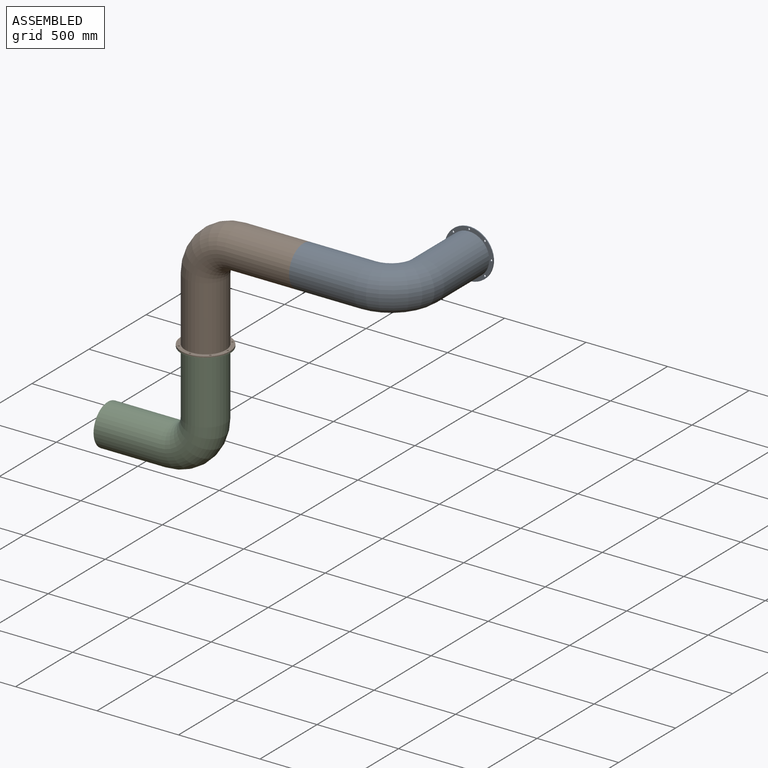
[diagram: assembled view]
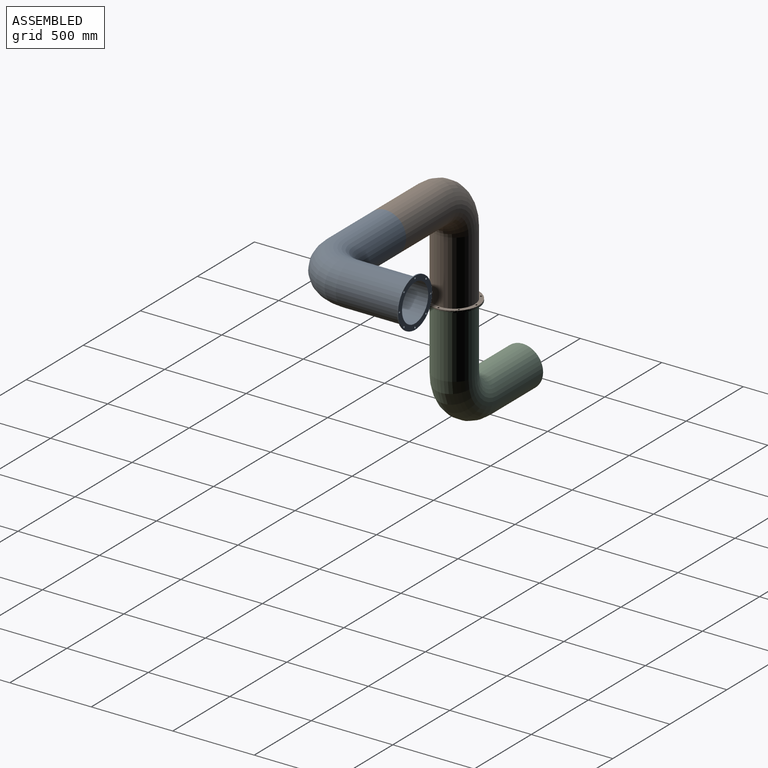
[diagram: assembled view, second angle]
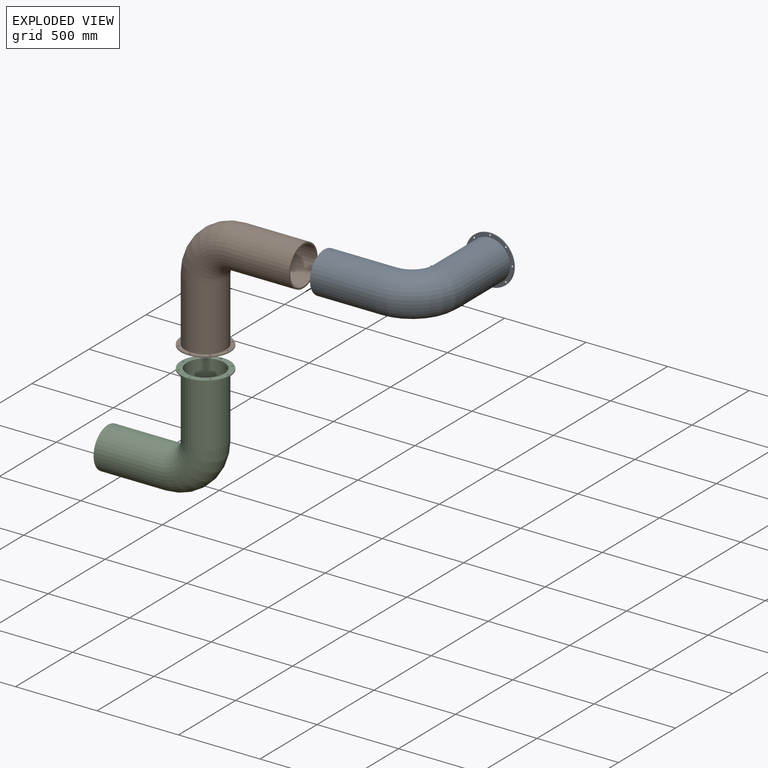
[diagram: exploded view]
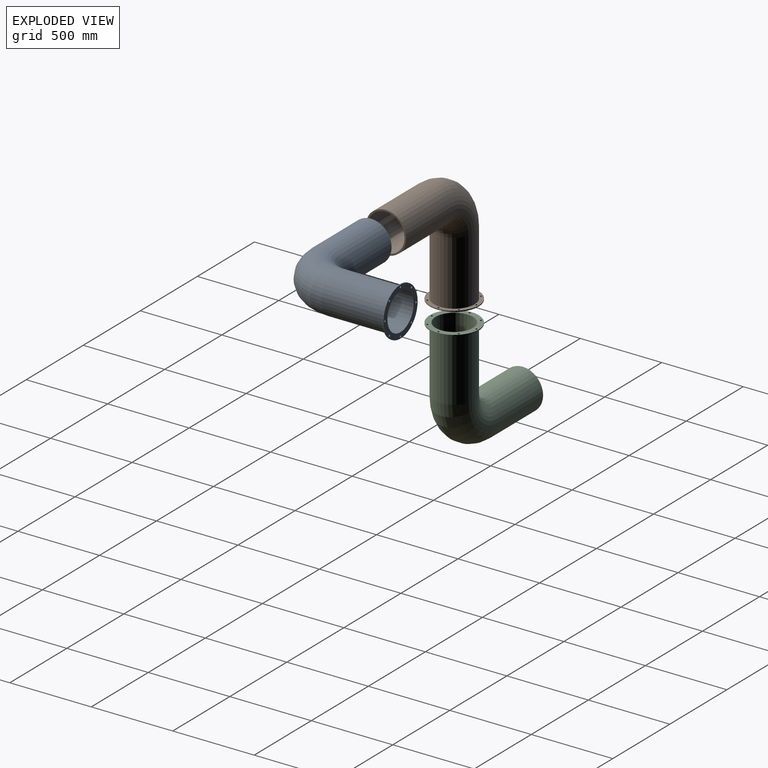
[diagram: exploded view, second angle]
ASSEMBLY  parts=3 mates=2
PART A: 18 faces, bbox 751.8x300x751.8 mm
  f0: cylinder r=6mm len=12mm, axis (0,0,-1), area 226.2mm2, adj f9,f10
  f1: cylinder r=6mm len=12mm, axis (0,0,-1), area 226.2mm2, adj f9,f10
  f2: cylinder r=6mm len=12mm, axis (0,0,-1), area 226.2mm2, adj f9,f10
  f3: cylinder r=6mm len=12mm, axis (0,0,-1), area 226.2mm2, adj f9,f10
  f4: cylinder r=6mm len=12mm, axis (0,0,-1), area 226.2mm2, adj f9,f10
  f5: cylinder r=6mm len=12mm, axis (0,0,-1), area 226.2mm2, adj f9,f10
  f6: cylinder r=6mm len=12mm, axis (0,0,-1), area 226.2mm2, adj f9,f10
  f7: cylinder r=6mm len=12mm, axis (0,0,-1), area 226.2mm2, adj f9,f10
  f8: cylinder r=150mm len=300mm, axis (0,0,-1), area 5654.9mm2, adj f9,f10
  f9: plane 300x300mm, normal (0,0,1), area 20693.7mm2, adj f0,f1,f2,f3,f4,f5,f6,f7
  f10: plane 300x300mm, normal (0,0,-1), area 28233.5mm2, adj f0,f1,f2,f3,f4,f5,f6,f7
  f11: cylinder r=115mm len=400mm, axis (0,0,1), area 289026.5mm2, adj f10,f12
  f12: torus R=200mm, axis (0,1,0), area 227000.9mm2, adj f11,f13
  f13: cylinder r=115mm len=400mm, axis (1,0,0), area 289026.5mm2, adj f12,f14
  f14: plane 250x250mm, normal (1,0,0), area 7539.8mm2, adj f13,f17
  f15: cylinder r=125mm len=394mm, axis (0,0,1), area 309446.9mm2, adj f9,f16
  f16: torus R=200mm, axis (0,1,0), area 246740.1mm2, adj f15,f17
  f17: cylinder r=125mm len=400mm, axis (1,0,0), area 314159.3mm2, adj f14,f16
PART B: same geometry as A
PART C: same geometry as A
PLACE A rot(axis=(0,-0.71,0.71),180deg) t=(1748.12,910.91,34.32)mm
PLACE B rot(axis=(0.74,-0.02,-0.67),0deg) t=(548.12,310.91,-565.68)mm
PLACE C rot(axis=(0,1,0),180deg) t=(548.12,310.91,-565.68)mm
MATE fastened C.f8 <-> B.f8  axis (0,0,1) through (548.12,310.91,-565.68)mm
MATE fastened A.f13 <-> B.f17  axis (-1,0,0) through (1148.12,310.91,34.32)mm
